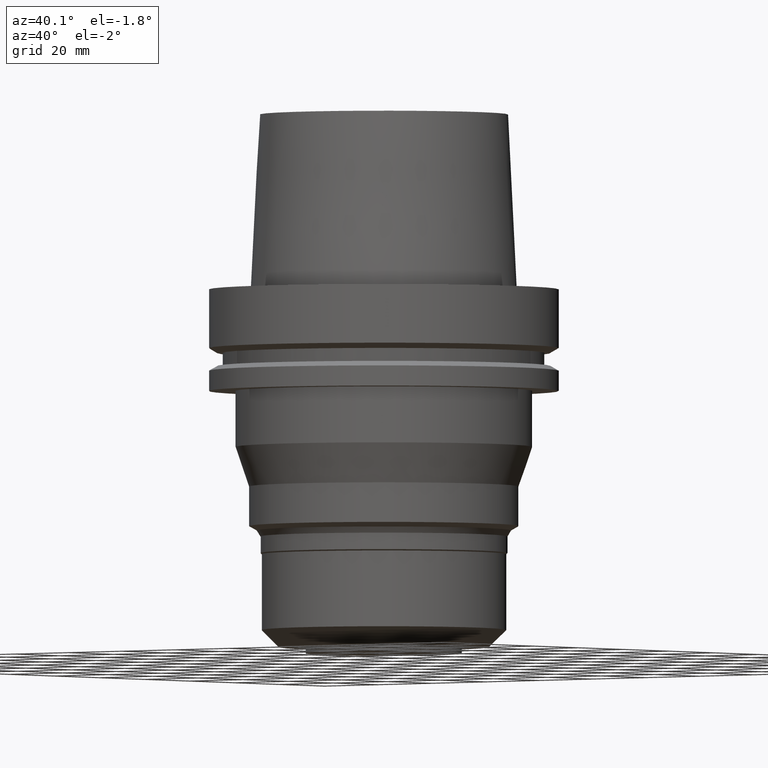
[diagram: clean part render]
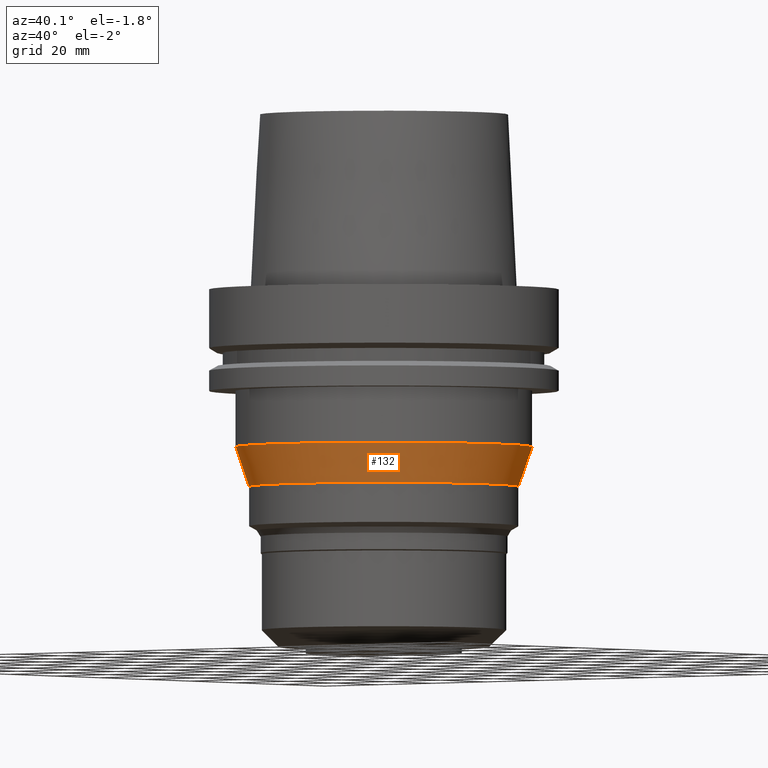
[diagram: same view with one face highlighted and labeled with its STEP entity id]
A machine part, auxiliary view. The second image highlights one B-rep face of the part: STEP entity #132.
In plain terms, the highlighted conical surface has half-angle 19.493 deg.
Its self-contained STEP definition (entity closure, byte-faithful):
#132=ADVANCED_FACE('Unnamed[1]',(#298,#299),#300,.T.);
#149=EDGE_CURVE('Unnamed[1]',#326,#326,#327,.T.);
#165=EDGE_CURVE('Unnamed[1]',#351,#351,#352,.T.);
#298=FACE_BOUND('',#509,.T.);
#299=FACE_BOUND('',#510,.T.);
#300=CONICAL_SURFACE('',#511,40.5,0.340218111644686);
#326=VERTEX_POINT('',#544);
#327=CIRCLE('',#545,38.5000000000001);
#351=VERTEX_POINT('',#576);
#352=CIRCLE('',#577,42.5);
#509=EDGE_LOOP('',(#725));
#510=EDGE_LOOP('',(#726));
#511=AXIS2_PLACEMENT_3D('',#727,#728,#729);
#544=CARTESIAN_POINT('',(3.44738073959978E-015,38.5000000000001,-56.2999999999997));
#545=AXIS2_PLACEMENT_3D('',#757,#758,#759);
#576=CARTESIAN_POINT('',(2.75545529808154E-015,42.5,-45.0));
#577=AXIS2_PLACEMENT_3D('',#784,#785,#786);
#725=ORIENTED_EDGE('',*,*,#149,.F.);
#726=ORIENTED_EDGE('',*,*,#165,.T.);
#727=CARTESIAN_POINT('',(3.10141801884066E-015,6.20283603768132E-015,-50.6499999999998));
#728=DIRECTION('',(-6.12323399573676E-017,-1.22464679914735E-016,1.0));
#729=DIRECTION('',(-1.23259516440783E-032,1.0,1.22464679914735E-016));
#757=CARTESIAN_POINT('',(3.44738073959978E-015,6.89476147919956E-015,-56.2999999999997));
#758=DIRECTION('',(6.12323399573677E-017,1.22464679914735E-016,-1.0));
#759=DIRECTION('',(-1.23259516440783E-032,1.0,1.22464679914735E-016));
#784=CARTESIAN_POINT('',(2.75545529808154E-015,5.51091059616309E-015,-45.0));
#785=DIRECTION('',(6.12323399573677E-017,1.22464679914735E-016,-1.0));
#786=DIRECTION('',(-1.23259516440783E-032,1.0,1.22464679914735E-016));